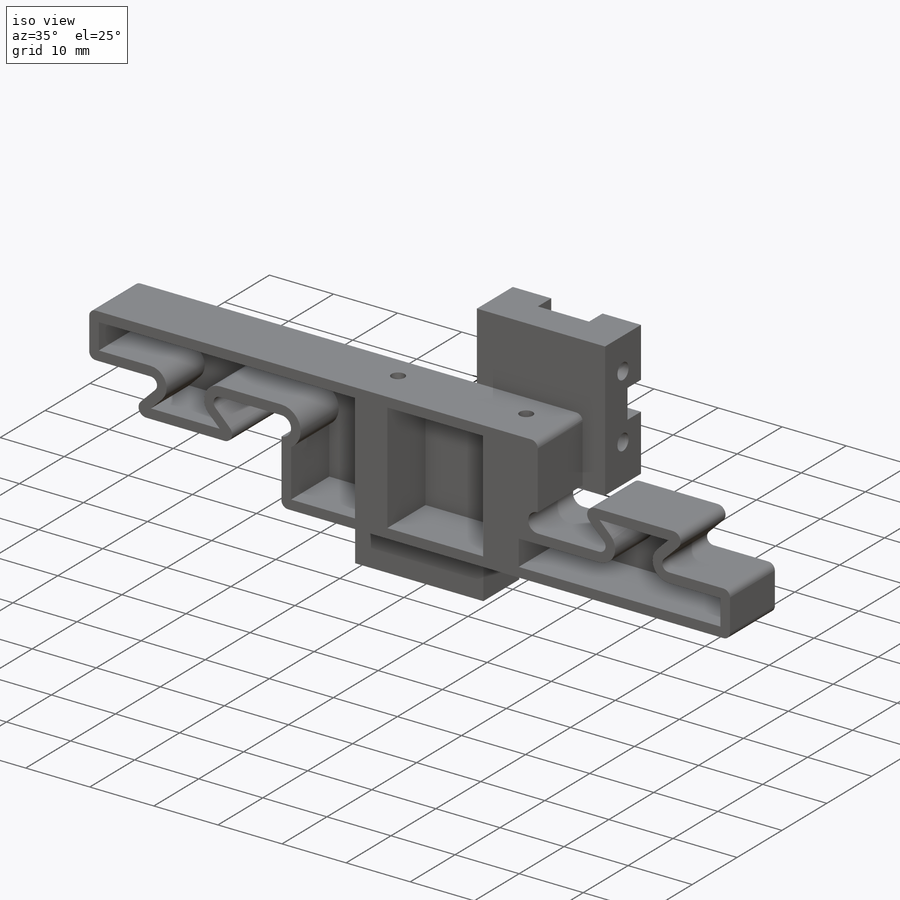
[diagram: iso view]
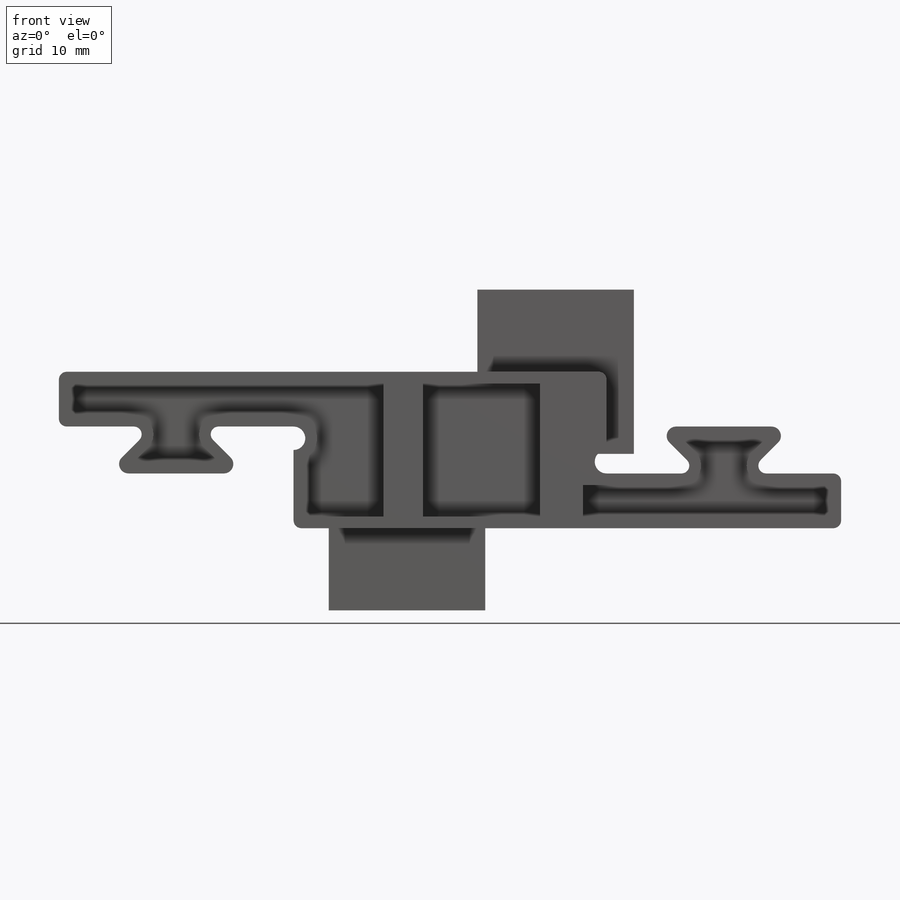
[diagram: front view]
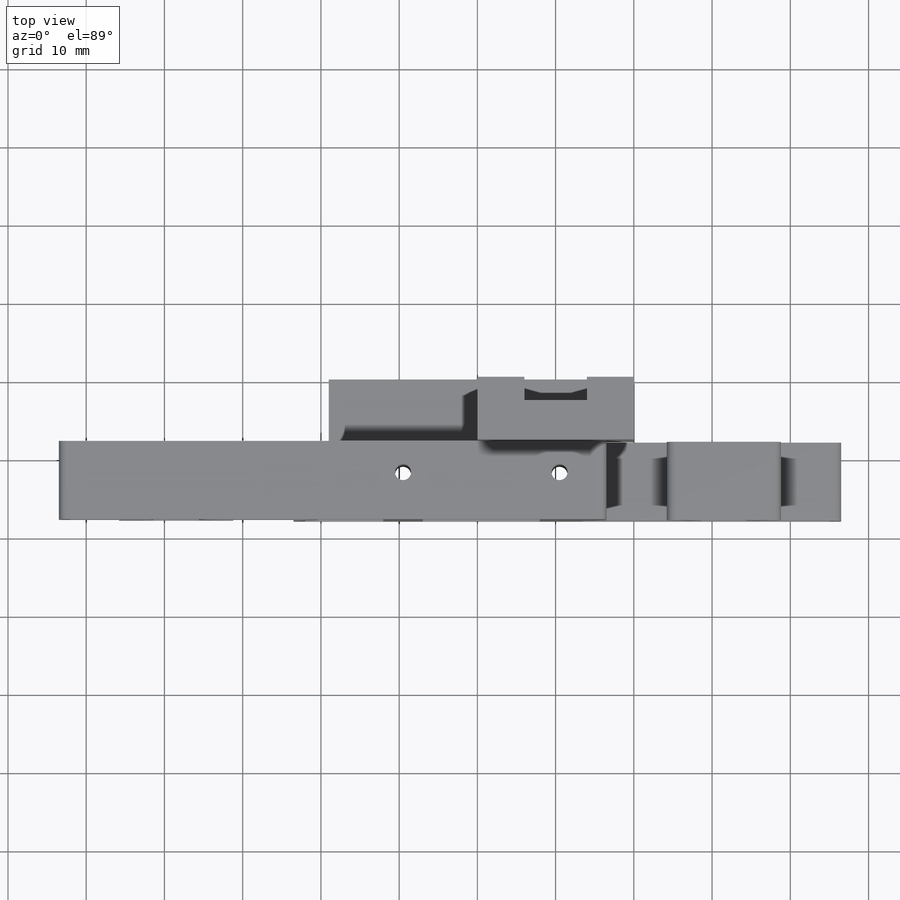
[diagram: top view]
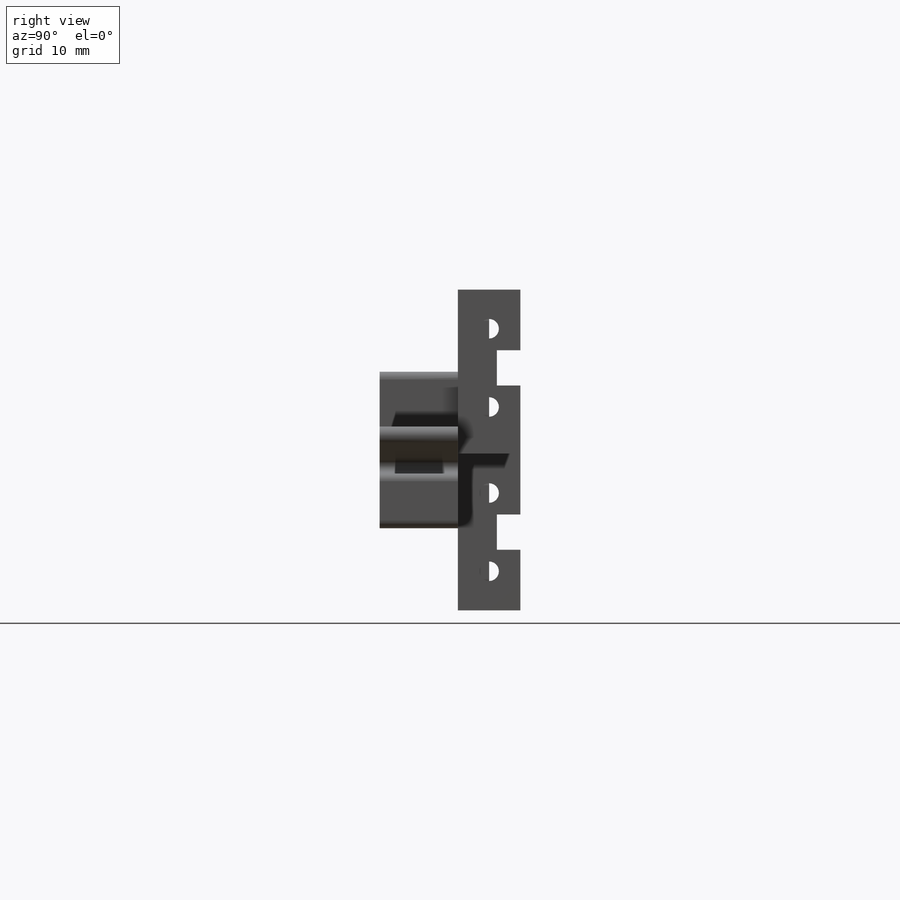
[diagram: right view]
SOLIDWORKS PART (.sldprt)
format: sldprt  version: not decoded by parser v0  size: 1,040,896 bytes
history: native  units: mm
features: sketch x22, cut_extrude x10, extrude x8, fillet x3, hole x2, material x1, plane x1 (+12 scaffold rows collapsed)
feature tree (59):
  scaffold x12  (default folders/planes/origin — collapsed)
  material  "ABS"
  sketch  "Sketch1"  dims[D1=20.0mm D2=1.0mm D3=1.0mm]
  extrude  "Boss-Extrude1"  Depth=8mm
  hole  "Tap Drill for M3 Tap1"  Diameter=2.5mm Depth=39mm
  sketch  "Sketch4"  dims[D1=10.0mm D2=10.0mm]
  sketch  "Sketch3"  dims[hole-wizard template sketch: 60 standard entries collapsed; hole parameters kept: c18.Thru Hole Depth=39.0mm]
  sketch  "Sketch5"  dims[D1=28.0mm]
  extrude  "Boss-Extrude2"  Depth=8mm
  hole  "Tap Drill for M2.5 Tap1"  Diameter=2.05mm Depth=30.5mm
  sketch  "Sketch7"  dims[D1=20.0mm]
  sketch  "Sketch6"  dims[hole-wizard template sketch: 60 standard entries collapsed; hole parameters kept: c18.Thru Hole Depth=30.5mm]
  sketch  "Sketch16"  dims[D1=2.0mm]
  extrude  "Boss-Extrude3"  [1 undecoded]
  plane  "Plane1"  Offset=1.5mm
  sketch  "Sketch11"  dims[D1=2.0mm D2=6.0mm]
  cut_extrude  "Cut-Extrude3"  Depth=11mm
  fillet  "Fillet1"  Radius=2mm
  sketch  "Sketch18"  dims[D1=2.0mm D2=2.0mm]
  extrude  "Boss-Extrude4"  [1 undecoded]
  sketch  "Sketch21"
  extrude  "Boss-Extrude7"  Depth=8mm
  sketch  "Sketch17"  dims[c1.D1=45.0deg c1.D2=7.0mm c1.D3=6.0mm c1.D4=24.0mm c1.D5=12.0mm c1.D6=18.0mm c1.D7=~8.485281mm c2.D7=45.0deg c2.D8=30.0mm c2.D9=45.0deg c2.D10=45.0deg]
  extrude  "Boss-Extrude5"  Depth=10mm
  fillet  "Fillet2"  Radius=1mm
  sketch  "Sketch19"  dims[c1.D2=2.0mm c1.D3=2.0mm c2.D2=2.0mm c2.D1=1.5mm]
  cut_extrude  "Cut-Extrude4"  Depth=8.5mm
  sketch  "Sketch23"  dims[D1=1.5mm D2=1.5mm D3=1.5mm]
  cut_extrude  "Cut-Extrude5"  Depth=8.5mm
  sketch  "Sketch24"  dims[D1=3.0mm]
  cut_extrude  "Cut-Extrude6"  [1 undecoded]
  fillet  "Fillet3"  Radius=1mm
  sketch  "Sketch26"  dims[D2=0.5mm D1=0.0mm D3=1.5mm]
  cut_extrude  "Cut-Extrude7"  Depth=8.5mm
  sketch  "Sketch27"  dims[D1=0.0mm D2=1.5mm D3=1.5mm]
  cut_extrude  "Cut-Extrude8"  Depth=8.5mm
  sketch  "Sketch28"  dims[D1=1.5mm D2=1.5mm D3=1.5mm]
  cut_extrude  "Cut-Extrude9"  Depth=6.5mm
  sketch  "Sketch30"
  cut_extrude  "Cut-Extrude10"  Depth=3mm
  sketch  "Sketch31"
  cut_extrude  "Cut-Extrude11"  Depth=3mm
  sketch  "Sketch32"  dims[D1=1.2mm D2=1.2mm D3=1.2mm D4=1.2mm]
  cut_extrude  "Cut-Extrude12"  Depth=10mm
  sketch  "Sketch34"
  extrude  "Boss-Extrude8"  [1 undecoded]
  sketch  "Sketch35"
  extrude  "Boss-Extrude9"  Depth=1mm
decode coverage: 36 of 45 modeling features carry decoded parameters
note: ~ marks probable driven/reference dimensions
note: 4 parameter values undecoded
summary: no parameter record found for 4 features
note: suppression state not decoded; provenance and decode notes live in map.json
